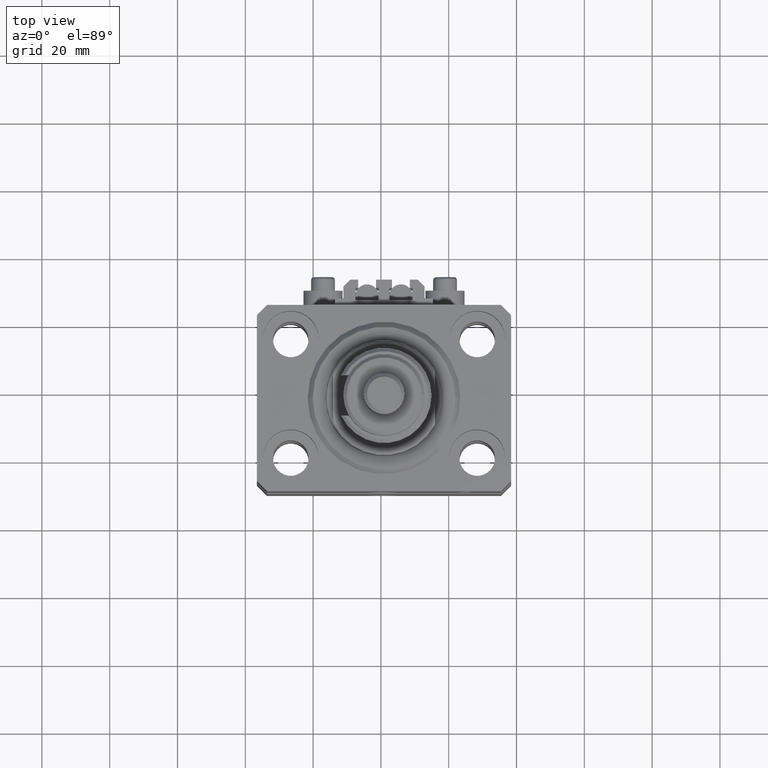
[diagram: clean part render]
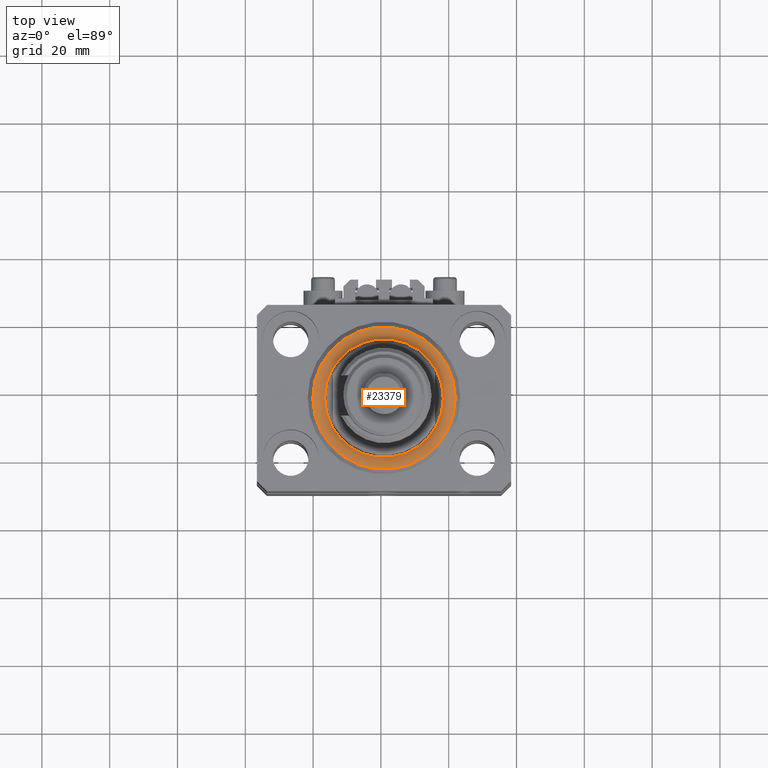
[diagram: same view with one face highlighted and labeled with its STEP entity id]
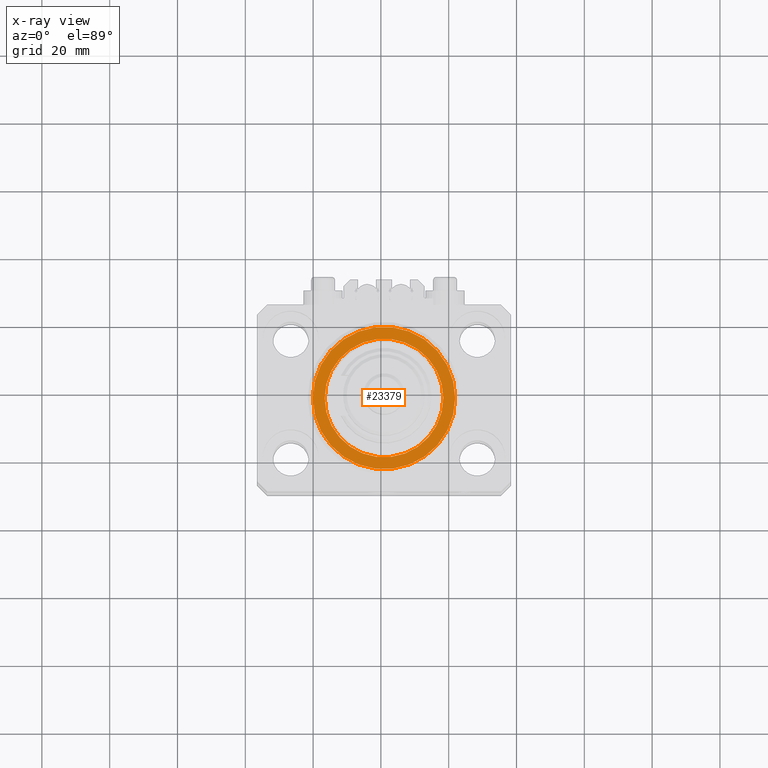
[diagram: x-ray of the same camera — body ghosted, the highlighted face saturated]
A machine part, top view. The second image highlights one B-rep face of the part: STEP entity #23379.
The next image is the same camera in x-ray: the body ghosted, the highlighted face saturated — about 0% of this face is hidden behind the body in this view.
In plain terms, the highlighted planar face has unit normal (0, 0, -1).
Its self-contained STEP definition (entity closure, byte-faithful):
#298 = DIRECTION ( 'NONE',  ( 0.000000000000000000, 0.000000000000000000, 1.000000000000000000 ) ) ;
#3442 = VERTEX_POINT ( 'NONE', #50415 ) ;
#4558 = DIRECTION ( 'NONE',  ( -0.000000000000000000, -0.000000000000000000, -1.000000000000000000 ) ) ;
#9004 = DIRECTION ( 'NONE',  ( 1.000000000000000000, 0.000000000000000000, 0.000000000000000000 ) ) ;
#12083 = VERTEX_POINT ( 'NONE', #29327 ) ;
#12384 = CIRCLE ( 'NONE', #21402, 20.99999999999995381 ) ;
#13368 = VERTEX_POINT ( 'NONE', #34635 ) ;
#15827 = EDGE_LOOP ( 'NONE', ( #45174, #30177 ) ) ;
#15862 = FACE_BOUND ( 'NONE', #15827, .T. ) ;
#19193 = AXIS2_PLACEMENT_3D ( 'NONE', #19691, #298, #31419 ) ;
#19223 = CIRCLE ( 'NONE', #33076, 17.50000000000000000 ) ;
#19691 = CARTESIAN_POINT ( 'NONE',  ( 0.000000000000000000, 0.000000000000000000, 0.000000000000000000 ) ) ;
#20135 = CIRCLE ( 'NONE', #44588, 20.99999999999995381 ) ;
#20895 = CARTESIAN_POINT ( 'NONE',  ( 0.000000000000000000, 0.000000000000000000, 0.000000000000000000 ) ) ;
#21402 = AXIS2_PLACEMENT_3D ( 'NONE', #20895, #4558, #24715 ) ;
#23379 = ADVANCED_FACE ( 'NONE', ( #15862, #46755 ), #43191, .F. ) ;
#24128 = EDGE_CURVE ( 'NONE', #13368, #43144, #19223, .T. ) ;
#24258 = DIRECTION ( 'NONE',  ( -0.000000000000000000, -0.000000000000000000, -1.000000000000000000 ) ) ;
#24715 = DIRECTION ( 'NONE',  ( 1.000000000000000000, 0.000000000000000000, 0.000000000000000000 ) ) ;
#25269 = CARTESIAN_POINT ( 'NONE',  ( 0.000000000000000000, 0.000000000000000000, 0.000000000000000000 ) ) ;
#25535 = ORIENTED_EDGE ( 'NONE', *, *, #30190, .T. ) ;
#26246 = EDGE_CURVE ( 'NONE', #3442, #12083, #20135, .T. ) ;
#28099 = CIRCLE ( 'NONE', #33802, 17.50000000000000000 ) ;
#28751 = ORIENTED_EDGE ( 'NONE', *, *, #26246, .T. ) ;
#29152 = DIRECTION ( 'NONE',  ( 0.000000000000000000, 0.000000000000000000, 1.000000000000000000 ) ) ;
#29327 = CARTESIAN_POINT ( 'NONE',  ( -20.99999999999995381, 2.663606788145490261E-15, 0.000000000000000000 ) ) ;
#29329 = DIRECTION ( 'NONE',  ( 0.000000000000000000, 0.000000000000000000, 1.000000000000000000 ) ) ;
#30177 = ORIENTED_EDGE ( 'NONE', *, *, #24128, .T. ) ;
#30190 = EDGE_CURVE ( 'NONE', #12083, #3442, #12384, .T. ) ;
#31086 = EDGE_LOOP ( 'NONE', ( #28751, #25535 ) ) ;
#31419 = DIRECTION ( 'NONE',  ( 1.000000000000000000, 0.000000000000000000, -0.000000000000000000 ) ) ;
#32163 = DIRECTION ( 'NONE',  ( 1.000000000000000000, 0.000000000000000000, 0.000000000000000000 ) ) ;
#33076 = AXIS2_PLACEMENT_3D ( 'NONE', #25269, #29329, #44662 ) ;
#33802 = AXIS2_PLACEMENT_3D ( 'NONE', #36060, #29152, #9004 ) ;
#34635 = CARTESIAN_POINT ( 'NONE',  ( -17.50000000000000000, 2.143131898507868643E-15, -2.168404344971008868E-16 ) ) ;
#36060 = CARTESIAN_POINT ( 'NONE',  ( 0.000000000000000000, 0.000000000000000000, 0.000000000000000000 ) ) ;
#36247 = EDGE_CURVE ( 'NONE', #43144, #13368, #28099, .T. ) ;
#41744 = CARTESIAN_POINT ( 'NONE',  ( 17.50000000000000000, 0.000000000000000000, -2.168404344971008868E-16 ) ) ;
#43144 = VERTEX_POINT ( 'NONE', #41744 ) ;
#43191 = PLANE ( 'NONE',  #19193 ) ;
#43671 = CARTESIAN_POINT ( 'NONE',  ( 0.000000000000000000, 0.000000000000000000, 0.000000000000000000 ) ) ;
#44588 = AXIS2_PLACEMENT_3D ( 'NONE', #43671, #24258, #32163 ) ;
#44662 = DIRECTION ( 'NONE',  ( 1.000000000000000000, 0.000000000000000000, 0.000000000000000000 ) ) ;
#45174 = ORIENTED_EDGE ( 'NONE', *, *, #36247, .T. ) ;
#46755 = FACE_OUTER_BOUND ( 'NONE', #31086, .T. ) ;
#50415 = CARTESIAN_POINT ( 'NONE',  ( 20.99999999999995381, 0.000000000000000000, 0.000000000000000000 ) ) ;